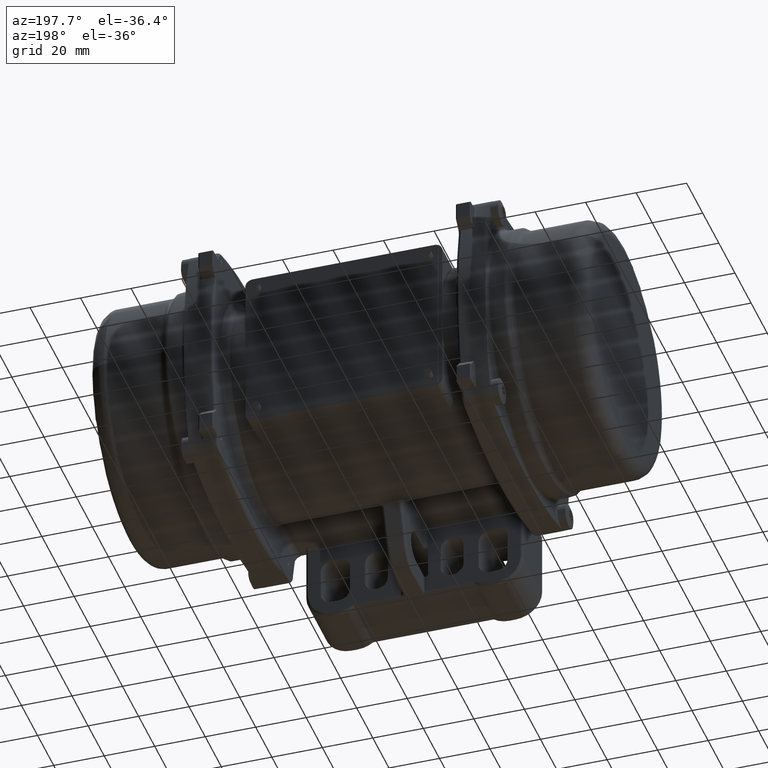
[diagram: clean part render]
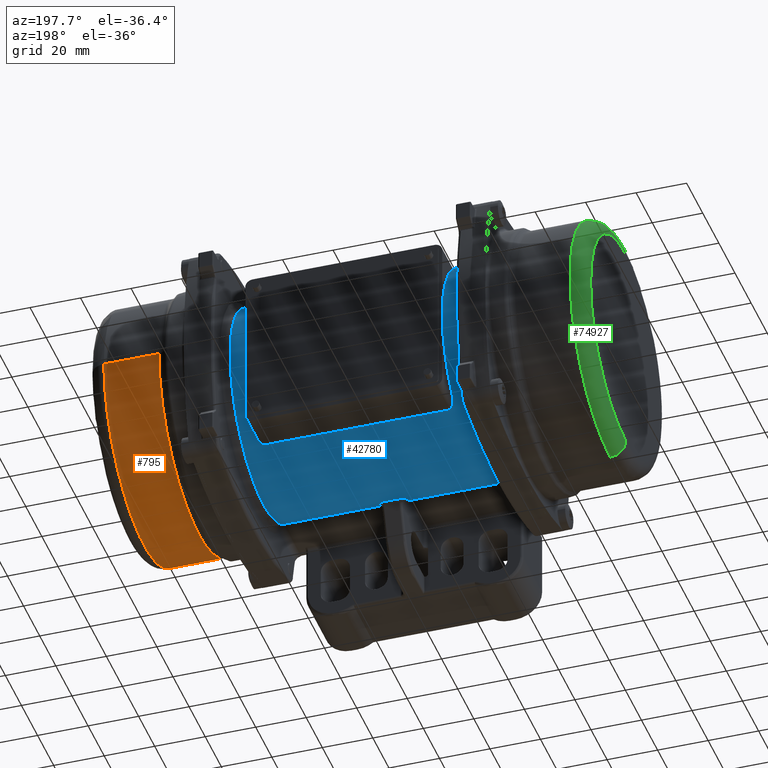
[diagram: same view with three faces highlighted in distinct colors, each labeled with its STEP entity id]
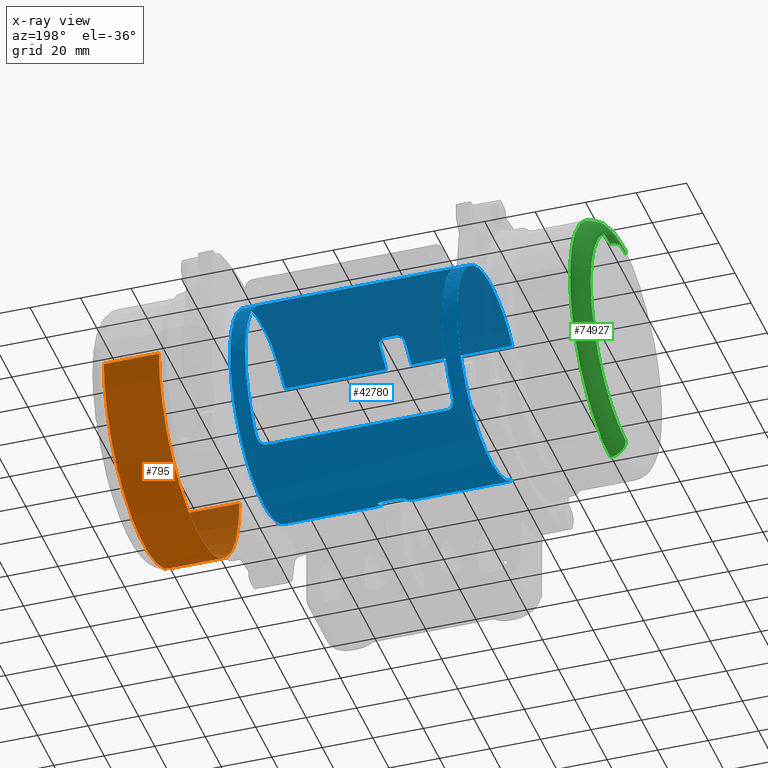
[diagram: x-ray of the same camera — body ghosted, the three highlighted faces saturated]
A machine part, auxiliary view with three faces highlighted in distinct colors.
The next image is the same camera in x-ray (body ghosted, the three faces saturated) — at least one of them is partly hidden behind the body in this view.
Their STEP definitions:

[orange] entity #795 — the highlighted cylindrical surface (partial cylindrical patch) has radius 49.95 mm, axis along (-1, -0, 0).
#795 = ADVANCED_FACE ( 'NONE', ( #101540 ), #73469, .T. ) ;
#12268 = EDGE_CURVE ( 'NONE', #35169, #54303, #68991, .T. ) ;
#13013 = ORIENTED_EDGE ( 'NONE', *, *, #21542, .F. ) ;
#16876 = AXIS2_PLACEMENT_3D ( 'NONE', #104878, #95794, #66921 ) ;
#19574 = AXIS2_PLACEMENT_3D ( 'NONE', #39358, #30323, #58751 ) ;
#20724 = CARTESIAN_POINT ( 'NONE',  ( 70.48969696196699900, -49.95000000000000300, 0.0000000000000000000 ) ) ;
#21542 = EDGE_CURVE ( 'NONE', #84191, #91439, #106180, .T. ) ;
#22369 = EDGE_LOOP ( 'NONE', ( #80527, #50413, #97755, #13013 ) ) ;
#23762 = VECTOR ( 'NONE', #95420, 1000.000000000000000 ) ;
#25560 = CARTESIAN_POINT ( 'NONE',  ( 92.29999999999999700, 1.600247234968320000E-015, 0.0000000000000000000 ) ) ;
#29938 = CARTESIAN_POINT ( 'NONE',  ( 58.50000000000000000, 49.95000000000000300, 6.117110761741029000E-015 ) ) ;
#30323 = DIRECTION ( 'NONE',  ( -1.000000000000000000, -4.734459275054199100E-017, 0.0000000000000000000 ) ) ;
#35030 = DIRECTION ( 'NONE',  ( 0.0000000000000000000, -1.000000000000000000, 0.0000000000000000000 ) ) ;
#35169 = VERTEX_POINT ( 'NONE', #97448 ) ;
#39358 = CARTESIAN_POINT ( 'NONE',  ( 58.50000000000000000, 0.0000000000000000000, 0.0000000000000000000 ) ) ;
#39909 = LINE ( 'NONE', #29938, #23762 ) ;
#40985 = CARTESIAN_POINT ( 'NONE',  ( 58.50000000000000000, -49.95000000000000300, 0.0000000000000000000 ) ) ;
#50413 = ORIENTED_EDGE ( 'NONE', *, *, #12268, .T. ) ;
#52105 = CARTESIAN_POINT ( 'NONE',  ( 92.29999999999999700, -49.94999999999999600, 0.0000000000000000000 ) ) ;
#54303 = VERTEX_POINT ( 'NONE', #52105 ) ;
#58751 = DIRECTION ( 'NONE',  ( 0.0000000000000000000, -1.000000000000000000, 0.0000000000000000000 ) ) ;
#60353 = DIRECTION ( 'NONE',  ( -1.000000000000000000, -4.734459275054199100E-017, 0.0000000000000000000 ) ) ;
#66921 = DIRECTION ( 'NONE',  ( 0.0000000000000000000, -1.000000000000000000, 0.0000000000000000000 ) ) ;
#68991 = CIRCLE ( 'NONE', #87204, 49.95000000000000300 ) ;
#73469 = CYLINDRICAL_SURFACE ( 'NONE', #19574, 49.95000000000000300 ) ;
#80527 = ORIENTED_EDGE ( 'NONE', *, *, #110340, .F. ) ;
#84191 = VERTEX_POINT ( 'NONE', #114572 ) ;
#87204 = AXIS2_PLACEMENT_3D ( 'NONE', #25560, #101772, #35030 ) ;
#91439 = VERTEX_POINT ( 'NONE', #20724 ) ;
#95420 = DIRECTION ( 'NONE',  ( -1.000000000000000000, -4.734459275054199100E-017, 0.0000000000000000000 ) ) ;
#95794 = DIRECTION ( 'NONE',  ( -1.000000000000000000, -4.734459275054199100E-017, 0.0000000000000000000 ) ) ;
#97448 = CARTESIAN_POINT ( 'NONE',  ( 92.29999999999999700, 49.94999999999999600, 6.117110761741028200E-015 ) ) ;
#97755 = ORIENTED_EDGE ( 'NONE', *, *, #113675, .T. ) ;
#98602 = LINE ( 'NONE', #40985, #107359 ) ;
#101540 = FACE_OUTER_BOUND ( 'NONE', #22369, .T. ) ;
#101772 = DIRECTION ( 'NONE',  ( -1.000000000000000000, -4.734459275054199100E-017, 0.0000000000000000000 ) ) ;
#104878 = CARTESIAN_POINT ( 'NONE',  ( 70.48969696196699900, 5.676473198667389600E-016, 0.0000000000000000000 ) ) ;
#106180 = CIRCLE ( 'NONE', #16876, 49.95000000000000300 ) ;
#107359 = VECTOR ( 'NONE', #60353, 1000.000000000000000 ) ;
#110340 = EDGE_CURVE ( 'NONE', #35169, #84191, #39909, .T. ) ;
#113675 = EDGE_CURVE ( 'NONE', #54303, #91439, #98602, .T. ) ;
#114572 = CARTESIAN_POINT ( 'NONE',  ( 70.48969696196699900, 49.95000000000000300, 6.117110761741029000E-015 ) ) ;

[blue] entity #42780 — the highlighted cylindrical surface (partial cylindrical patch) has radius 41.5 mm, axis along (-1, -0, 0).
#667 = CARTESIAN_POINT ( 'NONE',  ( 45.00000000000000000, -9.436648512232183700, 40.60353742847329500 ) ) ;
#774 = CARTESIAN_POINT ( 'NONE',  ( -45.00000000000000700, 37.09332074127581800, 19.02059786740895900 ) ) ;
#824 = CARTESIAN_POINT ( 'NONE',  ( 5.500000000000000000, -18.26934866613990100, -37.26232546842739900 ) ) ;
#941 = AXIS2_PLACEMENT_3D ( 'NONE', #57707, #30925, #4118 ) ;
#1161 = VECTOR ( 'NONE', #14007, 1000.000000000000000 ) ;
#1355 = EDGE_CURVE ( 'NONE', #122212, #76712, #26231, .T. ) ;
#1522 = CARTESIAN_POINT ( 'NONE',  ( -39.00000000000000000, 41.50000000000000000, 2.541142108230759800E-015 ) ) ;
#1674 = VERTEX_POINT ( 'NONE', #42942 ) ;
#1795 = CARTESIAN_POINT ( 'NONE',  ( 5.000000000000000000, -26.80392614338795100, 31.68279569892475000 ) ) ;
#1824 = CARTESIAN_POINT ( 'NONE',  ( -5.000000000000000000, -6.804890679999999100E-015, 0.0000000000000000000 ) ) ;
#1972 = DIRECTION ( 'NONE',  ( 1.672022627447525000E-016, -1.000000000000000000, 0.0000000000000000000 ) ) ;
#2007 = CARTESIAN_POINT ( 'NONE',  ( -45.00000000000000700, 24.35663043462383100, 33.82975230060072400 ) ) ;
#2133 = CARTESIAN_POINT ( 'NONE',  ( -45.00000000000000000, -26.80392614338795100, -31.68279569892475000 ) ) ;
#2202 = ORIENTED_EDGE ( 'NONE', *, *, #71965, .T. ) ;
#2526 = DIRECTION ( 'NONE',  ( 1.000000000000000000, 8.560756000000000800E-017, -0.0000000000000000000 ) ) ;
#2964 = CARTESIAN_POINT ( 'NONE',  ( 36.97080852912091600, 25.36180655224695000, 32.84871640095702400 ) ) ;
#3043 = AXIS2_PLACEMENT_3D ( 'NONE', #90653, #72492, #24762 ) ;
#3360 = CARTESIAN_POINT ( 'NONE',  ( 5.000000000000000000, -5.948815079999999600E-015, 0.0000000000000000000 ) ) ;
#4118 = DIRECTION ( 'NONE',  ( 1.672022627447525000E-016, -1.000000000000000000, 0.0000000000000000000 ) ) ;
#7039 = CARTESIAN_POINT ( 'NONE',  ( 36.00000000000000000, 25.16445906432325300, 33.00000000000000000 ) ) ;
#7253 = VERTEX_POINT ( 'NONE', #32297 ) ;
#7379 = B_SPLINE_CURVE_WITH_KNOTS ( 'NONE', 3,
 ( #20252, #37966, #103098, #46630, #103914, #47429, #59003, #12808, #2964, #106819, #96061, #39995, #105982, #77493 ),
 .UNSPECIFIED., .F., .F.,
 ( 4, 2, 2, 2, 2, 2, 4 ),
 ( 0.0000000000000000000, 0.001493043773895242900, 0.002986087547790479300, 0.004479131321685715300, 0.005225653208633340000, 0.005598914152107155000, 0.005972175095580969100 ),
 .UNSPECIFIED. ) ;
#7770 = EDGE_CURVE ( 'NONE', #20370, #17936, #102039, .T. ) ;
#8490 = CARTESIAN_POINT ( 'NONE',  ( 45.00000000000000000, -26.80392614338795100, 31.68279569892475000 ) ) ;
#8886 = B_SPLINE_CURVE_WITH_KNOTS ( 'NONE', 3,
 ( #51866, #108315, #23839, #109135, #41535, #70339, #117779, #107494, #23012, #107903 ),
 .UNSPECIFIED., .F., .F.,
 ( 4, 2, 2, 2, 4 ),
 ( 0.0000000000000000000, 0.2500000000000000000, 0.5000000000000000000, 0.7500000000000000000, 1.000000000000000000 ),
 .UNSPECIFIED. ) ;
#8896 = CARTESIAN_POINT ( 'NONE',  ( 45.00000000000000700, -13.25631805677156200, -39.52173602495920300 ) ) ;
#9696 = CARTESIAN_POINT ( 'NONE',  ( 45.00000000000000000, 24.35663043462384900, 33.82975230060073800 ) ) ;
#9964 = EDGE_LOOP ( 'NONE', ( #73390, #60228, #40134, #107787, #75637, #82828, #46423, #24103, #99812, #37234, #26137, #100438, #103154, #12003, #57610, #2202 ) ) ;
#10099 = CARTESIAN_POINT ( 'NONE',  ( 45.00000000000000000, -20.44005371033398100, 36.33045266945497100 ) ) ;
#10151 = AXIS2_PLACEMENT_3D ( 'NONE', #1824, #10857, #40526 ) ;
#10205 = CARTESIAN_POINT ( 'NONE',  ( -44.99999999999998600, 30.27445206728186400, 28.65580462794051500 ) ) ;
#10620 = CARTESIAN_POINT ( 'NONE',  ( -45.00000000000000000, 13.89718443282241000, 39.30096502236252600 ) ) ;
#10857 = DIRECTION ( 'NONE',  ( -1.000000000000000000, -8.560756000000000800E-017, 0.0000000000000000000 ) ) ;
#11332 = VECTOR ( 'NONE', #40556, 1000.000000000000000 ) ;
#11447 = DIRECTION ( 'NONE',  ( 1.672022627447525000E-016, -1.000000000000000000, 0.0000000000000000000 ) ) ;
#11732 = CARTESIAN_POINT ( 'NONE',  ( -4.405737000142092800, -16.99334913965218500, 37.86223667024636100 ) ) ;
#12003 = ORIENTED_EDGE ( 'NONE', *, *, #1355, .T. ) ;
#12162 = VERTEX_POINT ( 'NONE', #117894 ) ;
#12802 = CARTESIAN_POINT ( 'NONE',  ( -38.06703265897230200, 26.17784486581383500, -32.20504604893609000 ) ) ;
#12808 = CARTESIAN_POINT ( 'NONE',  ( 37.18541944342040800, 25.47093289277618300, 32.76442921106637800 ) ) ;
#13208 = CARTESIAN_POINT ( 'NONE',  ( -39.00000000000000700, 28.30991299814394000, -30.34886738248420100 ) ) ;
#13871 = DIRECTION ( 'NONE',  ( -1.000000000000000000, -8.560756000000000800E-017, 0.0000000000000000000 ) ) ;
#14007 = DIRECTION ( 'NONE',  ( 1.000000000000000000, 8.560756000000000800E-017, -0.0000000000000000000 ) ) ;
#14037 = VERTEX_POINT ( 'NONE', #60176 ) ;
#14116 = ORIENTED_EDGE ( 'NONE', *, *, #49940, .T. ) ;
#14440 = CARTESIAN_POINT ( 'NONE',  ( -37.18541944342045700, 25.47093289277619700, -32.76442921106635700 ) ) ;
#15518 = EDGE_CURVE ( 'NONE', #93365, #22175, #45065, .T. ) ;
#15939 = VECTOR ( 'NONE', #27093, 1000.000000000000000 ) ;
#16189 = EDGE_CURVE ( 'NONE', #76518, #7253, #34656, .T. ) ;
#17451 = B_SPLINE_CURVE_WITH_KNOTS ( 'NONE', 3,
 ( #95948, #95116, #86007, #19318, #66654, #28790, #47727, #39469, #114481, #114904, #58463, #113652, #49406, #57638, #38666, #30440, #105450, #57231, #115319, #30041, #774, #58879, #10205, #2007, #58058, #10620, #76121, #95525, #85601, #39082, #67069, #29195, #104598, #48147 ),
 .UNSPECIFIED., .F., .F.,
 ( 4, 2, 2, 2, 2, 2, 2, 2, 2, 2, 2, 2, 2, 2, 2, 2, 4 ),
 ( 0.0000000000000000000, 0.06250000000000005600, 0.1250000000000001100, 0.1875000000000001700, 0.2500000000000002200, 0.3125000000000002200, 0.3750000000000002200, 0.4375000000000002200, 0.5000000000000002200, 0.5625000000000002200, 0.6250000000000003300, 0.6875000000000002200, 0.7500000000000002200, 0.8125000000000001100, 0.8750000000000001100, 0.9375000000000000000, 1.000000000000000000 ),
 .UNSPECIFIED. ) ;
#17786 = DIRECTION ( 'NONE',  ( -1.000000000000000000, -8.560756000000000800E-017, 0.0000000000000000000 ) ) ;
#17936 = VERTEX_POINT ( 'NONE', #121078 ) ;
#18002 = CARTESIAN_POINT ( 'NONE',  ( 45.00000000000001400, 13.89718443282242800, -39.30096502236253300 ) ) ;
#19216 = CARTESIAN_POINT ( 'NONE',  ( 45.00000000000000000, 32.86308350020744500, 25.64596127477459900 ) ) ;
#19318 = CARTESIAN_POINT ( 'NONE',  ( -45.00000000000000700, -13.25631805677157300, -39.52173602495921000 ) ) ;
#20252 = CARTESIAN_POINT ( 'NONE',  ( 39.00000000000000000, 28.67490191787935300, 30.00000000000000000 ) ) ;
#20370 = VERTEX_POINT ( 'NONE', #7039 ) ;
#21219 = CARTESIAN_POINT ( 'NONE',  ( -3.331799564934461600, -16.06638084906878900, -38.26383941049779500 ) ) ;
#21326 = CARTESIAN_POINT ( 'NONE',  ( -39.00000000000000000, -9.715547720000000300E-015, 0.0000000000000000000 ) ) ;
#21386 = VERTEX_POINT ( 'NONE', #32406 ) ;
#21633 = CARTESIAN_POINT ( 'NONE',  ( -5.499986974609465000, -17.98114148010345300, -37.40363059374085700 ) ) ;
#22165 = CARTESIAN_POINT ( 'NONE',  ( -5.000000000000000000, -26.80392614338795100, 31.68279569892475000 ) ) ;
#22175 = VERTEX_POINT ( 'NONE', #2133 ) ;
#22740 = EDGE_CURVE ( 'NONE', #66871, #63677, #30495, .T. ) ;
#22825 = AXIS2_PLACEMENT_3D ( 'NONE', #44236, #100695, #90790 ) ;
#23012 = CARTESIAN_POINT ( 'NONE',  ( 3.331867981646504900, -16.06638087574636800, -38.26383939929642300 ) ) ;
#23102 = CARTESIAN_POINT ( 'NONE',  ( -36.00000000000000000, 25.16445906432325300, -33.00000000000000000 ) ) ;
#23375 = CARTESIAN_POINT ( 'NONE',  ( 38.04668703145266300, 26.17830464854081300, -32.20226353775233000 ) ) ;
#23839 = CARTESIAN_POINT ( 'NONE',  ( 5.437261034816005500, -17.70341183188086000, -37.53568015288149000 ) ) ;
#24051 = CARTESIAN_POINT ( 'NONE',  ( -37.74077835069474000, 25.86902314261497400, 32.45124116075557900 ) ) ;
#24103 = ORIENTED_EDGE ( 'NONE', *, *, #73441, .T. ) ;
#24202 = CARTESIAN_POINT ( 'NONE',  ( 38.53697707280093700, 26.85463837310741700, -31.64290590803623700 ) ) ;
#24312 = CARTESIAN_POINT ( 'NONE',  ( 48.00000000000000000, -26.80392614338795100, 31.68279569892475000 ) ) ;
#24459 = CARTESIAN_POINT ( 'NONE',  ( -39.00000000000000000, 28.67490191787935300, 30.00000000000000000 ) ) ;
#24762 = DIRECTION ( 'NONE',  ( 1.672022627447525000E-016, -1.000000000000000000, 0.0000000000000000000 ) ) ;
#25237 = VERTEX_POINT ( 'NONE', #78346 ) ;
#26124 = CARTESIAN_POINT ( 'NONE',  ( 4.924327064895720700, -17.91266762859300200, 37.43674085501444200 ) ) ;
#26137 = ORIENTED_EDGE ( 'NONE', *, *, #66537, .T. ) ;
#26231 = LINE ( 'NONE', #63772, #15939 ) ;
#27086 = CARTESIAN_POINT ( 'NONE',  ( 45.00000000000002100, -1.646359311140531200, 41.65317620383189700 ) ) ;
#27093 = DIRECTION ( 'NONE',  ( -1.000000000000000000, -8.560756000000000800E-017, 0.0000000000000000000 ) ) ;
#27157 = CARTESIAN_POINT ( 'NONE',  ( 48.00000000000000000, -26.80392614338795100, -31.68279569892475000 ) ) ;
#27480 = CARTESIAN_POINT ( 'NONE',  ( 45.00000000000000000, -26.80392614338795100, -31.68279569892475000 ) ) ;
#28681 = CARTESIAN_POINT ( 'NONE',  ( 45.00000000000000000, -13.25631805677161000, 39.52173602495918900 ) ) ;
#28790 = CARTESIAN_POINT ( 'NONE',  ( -45.00000000000000000, -1.646359311140513900, -41.65317620383187600 ) ) ;
#29195 = CARTESIAN_POINT ( 'NONE',  ( -45.00000000000000700, -20.44005371033399100, 36.33045266945497800 ) ) ;
#29223 = VERTEX_POINT ( 'NONE', #29253 ) ;
#29253 = CARTESIAN_POINT ( 'NONE',  ( 5.000000000000000000, -18.58273412551150000, 37.10703427142284700 ) ) ;
#30041 = CARTESIAN_POINT ( 'NONE',  ( -45.00000000000000700, 38.73446887403809300, 15.40579462069445400 ) ) ;
#30440 = CARTESIAN_POINT ( 'NONE',  ( -45.00000000000000000, 40.93792770107159400, -7.860258417550873800 ) ) ;
#30444 = VERTEX_POINT ( 'NONE', #82352 ) ;
#30495 = CIRCLE ( 'NONE', #79292, 41.50000000000000000 ) ;
#30716 = CARTESIAN_POINT ( 'NONE',  ( -4.535742395731329400, -16.51076376987780100, -38.07487488722641400 ) ) ;
#30925 = DIRECTION ( 'NONE',  ( -1.000000000000000000, -8.560756000000000800E-017, 0.0000000000000000000 ) ) ;
#31269 = DIRECTION ( 'NONE',  ( 1.000000000000000000, 8.560756000000000800E-017, -0.0000000000000000000 ) ) ;
#31394 = DIRECTION ( 'NONE',  ( 1.672022627447525000E-016, -1.000000000000000000, 1.776356839400250500E-015 ) ) ;
#32297 = CARTESIAN_POINT ( 'NONE',  ( -5.000000000000000000, -18.58273412551150000, 37.10703427142284700 ) ) ;
#32334 = CARTESIAN_POINT ( 'NONE',  ( -3.842315135766096700, -16.49933194678997900, 38.08011194791188100 ) ) ;
#32406 = CARTESIAN_POINT ( 'NONE',  ( 5.500000000000000000, -26.80392614338795100, -31.68279569892475000 ) ) ;
#33100 = CARTESIAN_POINT ( 'NONE',  ( -38.53697707280092300, 26.85463837310741300, 31.64290590803622300 ) ) ;
#33389 = CARTESIAN_POINT ( 'NONE',  ( 39.00000000000000000, 41.50000000000000000, 2.541142108230759800E-015 ) ) ;
#33501 = CARTESIAN_POINT ( 'NONE',  ( -36.96966368561911800, 25.36105556163562400, 32.84929758777426700 ) ) ;
#33971 = CARTESIAN_POINT ( 'NONE',  ( 2.000000000000000000, -15.97234780179230100, 38.30318662590074300 ) ) ;
#34377 = CIRCLE ( 'NONE', #74802, 41.50000000000000000 ) ;
#34656 = CIRCLE ( 'NONE', #10151, 41.50000000000000000 ) ;
#35347 = EDGE_CURVE ( 'NONE', #21386, #99794, #41857, .T. ) ;
#37234 = ORIENTED_EDGE ( 'NONE', *, *, #69098, .T. ) ;
#37358 = CARTESIAN_POINT ( 'NONE',  ( 44.99999999999999300, 2.323417502948888400, -41.62090001376515900 ) ) ;
#37458 = CARTESIAN_POINT ( 'NONE',  ( 48.00000000000000000, -15.97234780179230100, 38.30318662590074300 ) ) ;
#37966 = CARTESIAN_POINT ( 'NONE',  ( 39.00000000000000700, 28.30991299814393600, 30.34886738248420100 ) ) ;
#38150 = CARTESIAN_POINT ( 'NONE',  ( 45.00000000000002100, -23.80334260078467100, 34.22131598694760900 ) ) ;
#38215 = EDGE_LOOP ( 'NONE', ( #14116, #113294, #42815, #89242, #96147, #53504, #93046, #47708, #51510, #71210 ) ) ;
#38433 = CARTESIAN_POINT ( 'NONE',  ( 39.00000000000000000, 28.67490191787935300, -30.00000000000000000 ) ) ;
#38452 = CARTESIAN_POINT ( 'NONE',  ( 48.00000000000000000, -26.80392614338795100, -31.68279569892475000 ) ) ;
#38466 = CARTESIAN_POINT ( 'NONE',  ( 3.000000000000000000, -16.06625147205385000, -38.26389373334515700 ) ) ;
#38666 = CARTESIAN_POINT ( 'NONE',  ( -45.00000000000000000, 38.73446887403812200, -15.40579462069440800 ) ) ;
#38931 = CARTESIAN_POINT ( 'NONE',  ( -3.652122148808499600, -16.12349371370027700, -38.24000479331687800 ) ) ;
#39082 = CARTESIAN_POINT ( 'NONE',  ( -45.00000000000000000, -9.436648512232181900, 40.60353742847329500 ) ) ;
#39211 = LINE ( 'NONE', #102733, #43727 ) ;
#39446 = CIRCLE ( 'NONE', #70481, 41.50000000000000000 ) ;
#39469 = CARTESIAN_POINT ( 'NONE',  ( -45.00000000000000000, 10.09560981719779900, -40.44473079732073000 ) ) ;
#39700 = LINE ( 'NONE', #119358, #104627 ) ;
#39995 = CARTESIAN_POINT ( 'NONE',  ( 36.25276983336797800, 25.17507148804485300, 32.99191467751268200 ) ) ;
#40134 = ORIENTED_EDGE ( 'NONE', *, *, #114783, .T. ) ;
#40169 = CARTESIAN_POINT ( 'NONE',  ( -2.398336183495797200, -15.97247593339253400, 38.30313319529447800 ) ) ;
#40526 = DIRECTION ( 'NONE',  ( 8.360113137237625000E-017, -1.000000000000000000, 0.0000000000000000000 ) ) ;
#40556 = DIRECTION ( 'NONE',  ( -1.000000000000000000, -8.560756000000000800E-017, 0.0000000000000000000 ) ) ;
#40813 = DIRECTION ( 'NONE',  ( 8.360113137237625000E-017, -1.000000000000000000, 1.509903313490212900E-014 ) ) ;
#41391 = CARTESIAN_POINT ( 'NONE',  ( -2.781701497614261300, -16.03992128216436400, 38.27521648377432200 ) ) ;
#41535 = CARTESIAN_POINT ( 'NONE',  ( 5.004571130280928600, -16.92656908257234200, -37.89185975589194300 ) ) ;
#41752 = CARTESIAN_POINT ( 'NONE',  ( -38.04668703145265600, 26.17830464854079900, 32.20226353775230900 ) ) ;
#41857 = CIRCLE ( 'NONE', #22825, 41.50000000000000000 ) ;
#42454 = CARTESIAN_POINT ( 'NONE',  ( -36.49937316543528700, 25.21585340150327800, -32.96075538804204500 ) ) ;
#42780 = ADVANCED_FACE ( 'NONE', ( #58360, #48039 ), #120306, .T. ) ;
#42815 = ORIENTED_EDGE ( 'NONE', *, *, #7770, .T. ) ;
#42942 = CARTESIAN_POINT ( 'NONE',  ( -36.00000000000000000, 25.16445906432325300, -33.00000000000000000 ) ) ;
#42988 = CARTESIAN_POINT ( 'NONE',  ( -38.18279775045818500, 26.34495522369890700, 32.06621443786436000 ) ) ;
#43151 = CARTESIAN_POINT ( 'NONE',  ( 38.99999999999998600, 28.31019557621171100, -30.34859728587158800 ) ) ;
#43233 = VECTOR ( 'NONE', #31269, 1000.000000000000000 ) ;
#43608 = CIRCLE ( 'NONE', #69294, 41.50000000000000000 ) ;
#43727 = VECTOR ( 'NONE', #112580, 1000.000000000000000 ) ;
#43854 = CARTESIAN_POINT ( 'NONE',  ( 2.782599804904236000, -16.04027369573460900, 38.27506734031795300 ) ) ;
#44236 = CARTESIAN_POINT ( 'NONE',  ( 5.500000000000000000, -5.906011299999999700E-015, 0.0000000000000000000 ) ) ;
#45065 = LINE ( 'NONE', #27157, #102521 ) ;
#45449 = EDGE_CURVE ( 'NONE', #54363, #98315, #108463, .T. ) ;
#46008 = CARTESIAN_POINT ( 'NONE',  ( 45.00000000000000000, 38.73446887403811400, 15.40579462069444700 ) ) ;
#46423 = ORIENTED_EDGE ( 'NONE', *, *, #70267, .T. ) ;
#46600 = CARTESIAN_POINT ( 'NONE',  ( -5.500000000000000000, -6.847694459999999800E-015, 0.0000000000000000000 ) ) ;
#46630 = CARTESIAN_POINT ( 'NONE',  ( 38.71117637958996500, 27.22069802426599200, 31.32920617801863400 ) ) ;
#46812 = CARTESIAN_POINT ( 'NONE',  ( 45.00000000000000000, -1.646359311140505000, -41.65317620383189000 ) ) ;
#47077 = B_SPLINE_CURVE_WITH_KNOTS ( 'NONE', 3,
 ( #78715, #13208, #116252, #79112, #88585, #12802, #70849, #14440, #79513, #108002, #42454, #61005, #116670, #23102 ),
 .UNSPECIFIED., .F., .F.,
 ( 4, 2, 2, 2, 2, 2, 4 ),
 ( 0.0000000000000000000, 0.001493043773895204800, 0.002986087547790409500, 0.004479131321685614700, 0.005225653208633215100, 0.005598914152107014500, 0.005972175095580813800 ),
 .UNSPECIFIED. ) ;
#47209 = CARTESIAN_POINT ( 'NONE',  ( 44.99999999999999300, 40.93792770107160100, 7.860258417550913800 ) ) ;
#47429 = CARTESIAN_POINT ( 'NONE',  ( 38.06703265897225900, 26.17784486581380700, 32.20504604893611900 ) ) ;
#47621 = CARTESIAN_POINT ( 'NONE',  ( 45.00000000000000000, 13.89718443282241200, 39.30096502236253300 ) ) ;
#47708 = ORIENTED_EDGE ( 'NONE', *, *, #116984, .T. ) ;
#47727 = CARTESIAN_POINT ( 'NONE',  ( -44.99999999999998600, 2.323417502948882200, -41.62090001376515900 ) ) ;
#48039 = FACE_OUTER_BOUND ( 'NONE', #9964, .T. ) ;
#48147 = CARTESIAN_POINT ( 'NONE',  ( -45.00000000000000000, -26.80392614338795100, 31.68279569892475000 ) ) ;
#49394 = VERTEX_POINT ( 'NONE', #1795 ) ;
#49406 = CARTESIAN_POINT ( 'NONE',  ( -45.00000000000000000, 32.86308350020744500, -25.64596127477459900 ) ) ;
#49672 = CARTESIAN_POINT ( 'NONE',  ( -5.500000000000000000, -18.26934866613984800, -37.26232546842739900 ) ) ;
#49940 = EDGE_CURVE ( 'NONE', #87377, #14037, #43608, .T. ) ;
#50089 = CARTESIAN_POINT ( 'NONE',  ( -4.999986977248799000, -18.24223822142476700, 37.27755031994853100 ) ) ;
#50501 = CARTESIAN_POINT ( 'NONE',  ( -4.924766335671957800, -17.91362045608679300, 37.43629481274271600 ) ) ;
#51293 = CARTESIAN_POINT ( 'NONE',  ( -3.518490387096523200, -16.30855118900024100, 38.16153075721120300 ) ) ;
#51510 = ORIENTED_EDGE ( 'NONE', *, *, #45449, .T. ) ;
#51663 = CARTESIAN_POINT ( 'NONE',  ( -39.00000000000000000, 28.31019557621171500, 30.34859728587159800 ) ) ;
#51774 = VERTEX_POINT ( 'NONE', #95938 ) ;
#51866 = CARTESIAN_POINT ( 'NONE',  ( 5.500000000000000000, -18.26934866613990100, -37.26232546842739900 ) ) ;
#52530 = CARTESIAN_POINT ( 'NONE',  ( 4.404905595596333400, -16.99260393536104600, 37.86256532599799100 ) ) ;
#52881 = CARTESIAN_POINT ( 'NONE',  ( -37.57066824347722900, 25.72501199590641400, 32.56532271691830300 ) ) ;
#53359 = CARTESIAN_POINT ( 'NONE',  ( 2.398267662984599800, -15.97247591135174400, 38.30313320448543400 ) ) ;
#53504 = ORIENTED_EDGE ( 'NONE', *, *, #72780, .T. ) ;
#54363 = VERTEX_POINT ( 'NONE', #63589 ) ;
#56328 = CARTESIAN_POINT ( 'NONE',  ( 44.99999999999998600, 37.09332074127583200, -19.02059786740895900 ) ) ;
#56727 = CARTESIAN_POINT ( 'NONE',  ( 44.99999999999998600, -20.44005371033394200, -36.33045266945499900 ) ) ;
#57231 = CARTESIAN_POINT ( 'NONE',  ( -45.00000000000001400, 41.49999999999999300, 3.930341823409942300 ) ) ;
#57610 = ORIENTED_EDGE ( 'NONE', *, *, #70842, .T. ) ;
#57638 = CARTESIAN_POINT ( 'NONE',  ( -45.00000000000000000, 37.09332074127581800, -19.02059786740895600 ) ) ;
#57707 = CARTESIAN_POINT ( 'NONE',  ( 48.00000000000000000, -2.267690000000000000E-015, 0.0000000000000000000 ) ) ;
#58058 = CARTESIAN_POINT ( 'NONE',  ( -45.00000000000000000, 21.02808049242617000, 35.99329684334141900 ) ) ;
#58360 = FACE_BOUND ( 'NONE', #38215, .T. ) ;
#58463 = CARTESIAN_POINT ( 'NONE',  ( -45.00000000000000700, 24.35663043462386700, -33.82975230060072400 ) ) ;
#58879 = CARTESIAN_POINT ( 'NONE',  ( -44.99999999999999300, 32.86308350020744500, 25.64596127477459200 ) ) ;
#59003 = CARTESIAN_POINT ( 'NONE',  ( 37.76483774926720800, 25.85346144361904300, 32.46465011677244000 ) ) ;
#59162 = CARTESIAN_POINT ( 'NONE',  ( -5.184499758316357900, -17.16561078442967800, -37.78464421327522200 ) ) ;
#60176 = CARTESIAN_POINT ( 'NONE',  ( 39.00000000000000000, 28.67490191787935300, 30.00000000000000000 ) ) ;
#60228 = ORIENTED_EDGE ( 'NONE', *, *, #112261, .T. ) ;
#60281 = B_SPLINE_CURVE_WITH_KNOTS ( 'NONE', 3,
 ( #116016, #50089, #50501, #117235, #11732, #32334, #51293, #41391, #40169, #88335 ),
 .UNSPECIFIED., .F., .F.,
 ( 4, 2, 2, 2, 4 ),
 ( 0.0000000000000000000, 0.2500000000000000000, 0.5000000000000000000, 0.7500000000000000000, 1.000000000000000000 ),
 .UNSPECIFIED. ) ;
#60875 = CARTESIAN_POINT ( 'NONE',  ( 37.18180700678653500, 25.46881098959096700, -32.76608235085566200 ) ) ;
#61005 = CARTESIAN_POINT ( 'NONE',  ( -36.25276983336799200, 25.17507148804485300, -32.99191467751269600 ) ) ;
#61661 = CARTESIAN_POINT ( 'NONE',  ( 48.00000000000000000, 25.16445906432325300, 33.00000000000000000 ) ) ;
#63589 = CARTESIAN_POINT ( 'NONE',  ( 36.00000000000000000, 25.16445906432325300, -33.00000000000000000 ) ) ;
#63677 = VERTEX_POINT ( 'NONE', #1522 ) ;
#63772 = CARTESIAN_POINT ( 'NONE',  ( 48.00000000000000000, -16.06625147205385000, -38.26389373334515700 ) ) ;
#64587 = EDGE_CURVE ( 'NONE', #49394, #82145, #39700, .T. ) ;
#64951 = CARTESIAN_POINT ( 'NONE',  ( 45.00000000000000700, 21.02808049242619900, -35.99329684334140500 ) ) ;
#65749 = CARTESIAN_POINT ( 'NONE',  ( 45.00000000000000000, 30.27445206728191000, -28.65580462794049800 ) ) ;
#66537 = EDGE_CURVE ( 'NONE', #12162, #21386, #76201, .T. ) ;
#66654 = CARTESIAN_POINT ( 'NONE',  ( -44.99999999999998600, -9.436648512232162400, -40.60353742847330200 ) ) ;
#66871 = VERTEX_POINT ( 'NONE', #86130 ) ;
#67069 = CARTESIAN_POINT ( 'NONE',  ( -44.99999999999998600, -13.25631805677162100, 39.52173602495916800 ) ) ;
#67370 = EDGE_CURVE ( 'NONE', #99794, #122212, #8886, .T. ) ;
#67670 = EDGE_CURVE ( 'NONE', #7253, #83569, #60281, .T. ) ;
#68191 = EDGE_CURVE ( 'NONE', #14037, #20370, #7379, .T. ) ;
#68272 = DIRECTION ( 'NONE',  ( -1.000000000000000000, -8.560756000000000800E-017, 0.0000000000000000000 ) ) ;
#68573 = CARTESIAN_POINT ( 'NONE',  ( -5.436884321194631800, -17.70258019718609800, -37.53606514125470300 ) ) ;
#69098 = EDGE_CURVE ( 'NONE', #82145, #12162, #93446, .T. ) ;
#69294 = AXIS2_PLACEMENT_3D ( 'NONE', #76960, #86003, #11447 ) ;
#69522 = CARTESIAN_POINT ( 'NONE',  ( -45.00000000000000000, -26.80392614338795100, 31.68279569892475000 ) ) ;
#70267 = EDGE_CURVE ( 'NONE', #51774, #29223, #110101, .T. ) ;
#70339 = CARTESIAN_POINT ( 'NONE',  ( 4.534946004099872100, -16.51004105744661000, -38.07519298636193400 ) ) ;
#70349 = CARTESIAN_POINT ( 'NONE',  ( 45.00000000000000000, -26.80392614338795100, 31.68279569892475000 ) ) ;
#70481 = AXIS2_PLACEMENT_3D ( 'NONE', #96892, #79119, #31394 ) ;
#70842 = EDGE_CURVE ( 'NONE', #76712, #25237, #97960, .T. ) ;
#70849 = CARTESIAN_POINT ( 'NONE',  ( -37.76483774926721500, 25.85346144361906800, -32.46465011677241800 ) ) ;
#71116 = CARTESIAN_POINT ( 'NONE',  ( 38.70788423421364400, 27.21204043317447600, -31.33680048928130200 ) ) ;
#71210 = ORIENTED_EDGE ( 'NONE', *, *, #95814, .T. ) ;
#71360 = CARTESIAN_POINT ( 'NONE',  ( -38.70788423421365800, 27.21204043317446900, 31.33680048928131600 ) ) ;
#71420 = CARTESIAN_POINT ( 'NONE',  ( 4.999986976125605900, -18.24220885428063700, 37.27756502664340800 ) ) ;
#71965 = EDGE_CURVE ( 'NONE', #25237, #93365, #118560, .T. ) ;
#72492 = DIRECTION ( 'NONE',  ( -1.000000000000000000, -8.560756000000000800E-017, 0.0000000000000000000 ) ) ;
#72780 = EDGE_CURVE ( 'NONE', #63677, #30444, #88946, .T. ) ;
#73390 = ORIENTED_EDGE ( 'NONE', *, *, #15518, .T. ) ;
#73441 = EDGE_CURVE ( 'NONE', #29223, #49394, #34377, .T. ) ;
#74412 = CARTESIAN_POINT ( 'NONE',  ( 45.00000000000000700, 41.50000000000001400, -3.930341823409936100 ) ) ;
#74802 = AXIS2_PLACEMENT_3D ( 'NONE', #3360, #2526, #40813 ) ;
#75138 = CARTESIAN_POINT ( 'NONE',  ( -36.00000000000000000, 25.16445906432325300, 33.00000000000000000 ) ) ;
#75613 = CARTESIAN_POINT ( 'NONE',  ( 45.00000000000000000, 10.09560981719782000, -40.44473079732074400 ) ) ;
#75637 = ORIENTED_EDGE ( 'NONE', *, *, #67670, .T. ) ;
#76024 = CARTESIAN_POINT ( 'NONE',  ( 45.00000000000000700, 21.02808049242617700, 35.99329684334141200 ) ) ;
#76121 = CARTESIAN_POINT ( 'NONE',  ( -44.99999999999998600, 10.09560981719778300, 40.44473079732073700 ) ) ;
#76201 = LINE ( 'NONE', #38452, #11332 ) ;
#76518 = VERTEX_POINT ( 'NONE', #22165 ) ;
#76712 = VERTEX_POINT ( 'NONE', #82231 ) ;
#76872 = CARTESIAN_POINT ( 'NONE',  ( -5.500000000000000000, -26.80392614338795100, -31.68279569892475000 ) ) ;
#76960 = CARTESIAN_POINT ( 'NONE',  ( 39.00000000000000000, -3.038158039999999600E-015, 0.0000000000000000000 ) ) ;
#77493 = CARTESIAN_POINT ( 'NONE',  ( 36.00000000000000000, 25.16445906432325300, 33.00000000000000000 ) ) ;
#77549 = VERTEX_POINT ( 'NONE', #69522 ) ;
#77637 = CARTESIAN_POINT ( 'NONE',  ( -3.000000000000000000, -16.06625147205385000, -38.26389373334515700 ) ) ;
#78346 = CARTESIAN_POINT ( 'NONE',  ( -5.500000000000000000, -18.26934866613984800, -37.26232546842739900 ) ) ;
#78715 = CARTESIAN_POINT ( 'NONE',  ( -39.00000000000000000, 28.67490191787935300, -30.00000000000000000 ) ) ;
#79112 = CARTESIAN_POINT ( 'NONE',  ( -38.71117637958997200, 27.22069802426601000, -31.32920617801859100 ) ) ;
#79119 = DIRECTION ( 'NONE',  ( 1.000000000000000000, 8.560756000000000800E-017, -0.0000000000000000000 ) ) ;
#79292 = AXIS2_PLACEMENT_3D ( 'NONE', #21326, #68272, #1972 ) ;
#79513 = CARTESIAN_POINT ( 'NONE',  ( -36.97080852912093700, 25.36180655224694600, -32.84871640095701700 ) ) ;
#80478 = EDGE_CURVE ( 'NONE', #30444, #1674, #47077, .T. ) ;
#80848 = CARTESIAN_POINT ( 'NONE',  ( -36.49967888950572400, 25.20654691124319400, 32.96800697679216800 ) ) ;
#82145 = VERTEX_POINT ( 'NONE', #70349 ) ;
#82231 = CARTESIAN_POINT ( 'NONE',  ( -3.000000000000000000, -16.06625147205385000, -38.26389373334515700 ) ) ;
#82352 = CARTESIAN_POINT ( 'NONE',  ( -39.00000000000000000, 28.67490191787935300, -30.00000000000000000 ) ) ;
#82828 = ORIENTED_EDGE ( 'NONE', *, *, #97197, .T. ) ;
#83569 = VERTEX_POINT ( 'NONE', #98950 ) ;
#85094 = CARTESIAN_POINT ( 'NONE',  ( 45.00000000000000700, 37.09332074127581800, 19.02059786740896600 ) ) ;
#85601 = CARTESIAN_POINT ( 'NONE',  ( -45.00000000000000000, -1.646359311140540800, 41.65317620383189700 ) ) ;
#86003 = DIRECTION ( 'NONE',  ( 1.000000000000000000, 8.560756000000000800E-017, -0.0000000000000000000 ) ) ;
#86007 = CARTESIAN_POINT ( 'NONE',  ( -45.00000000000000000, -20.44005371033394900, -36.33045266945499200 ) ) ;
#86130 = CARTESIAN_POINT ( 'NONE',  ( -39.00000000000000000, 28.67490191787935300, 30.00000000000000000 ) ) ;
#86279 = CARTESIAN_POINT ( 'NONE',  ( -4.264360765410893700, -16.34903912894261800, -38.14412059136943600 ) ) ;
#86548 = AXIS2_PLACEMENT_3D ( 'NONE', #46600, #17786, #112528 ) ;
#86612 = LINE ( 'NONE', #24312, #1161 ) ;
#87377 = VERTEX_POINT ( 'NONE', #33389 ) ;
#87406 = LINE ( 'NONE', #37458, #43233 ) ;
#88335 = CARTESIAN_POINT ( 'NONE',  ( -2.000000000000000000, -15.97234780179230100, 38.30318662590074300 ) ) ;
#88585 = CARTESIAN_POINT ( 'NONE',  ( -38.53786270816175400, 26.85643450713931900, -31.64137289051228300 ) ) ;
#88946 = CIRCLE ( 'NONE', #3043, 41.50000000000000000 ) ;
#89242 = ORIENTED_EDGE ( 'NONE', *, *, #116046, .T. ) ;
#89263 = CARTESIAN_POINT ( 'NONE',  ( 37.74077835069473300, 25.86902314261497400, -32.45124116075557900 ) ) ;
#90085 = CARTESIAN_POINT ( 'NONE',  ( 38.94106974171390300, 27.94451770360717200, -30.68540597343513100 ) ) ;
#90492 = CARTESIAN_POINT ( 'NONE',  ( 37.57066824347723600, 25.72501199590641700, -32.56532271691831000 ) ) ;
#90653 = CARTESIAN_POINT ( 'NONE',  ( -39.00000000000000000, -9.715547720000000300E-015, 0.0000000000000000000 ) ) ;
#90790 = DIRECTION ( 'NONE',  ( 8.360113137237625000E-017, -1.000000000000000000, 0.0000000000000000000 ) ) ;
#92503 = DIRECTION ( 'NONE',  ( 1.000000000000000000, 8.560756000000000800E-017, -0.0000000000000000000 ) ) ;
#92968 = CARTESIAN_POINT ( 'NONE',  ( 44.99999999999999300, 41.49999999999998600, 3.930341823409949000 ) ) ;
#93046 = ORIENTED_EDGE ( 'NONE', *, *, #80478, .T. ) ;
#93365 = VERTEX_POINT ( 'NONE', #76872 ) ;
#93446 = B_SPLINE_CURVE_WITH_KNOTS ( 'NONE', 3,
 ( #8490, #38150, #10099, #28681, #667, #27086, #93771, #94591, #47621, #76024, #9696, #104102, #19216, #85094, #46008, #47209, #92968, #74412, #103696, #122183, #56328, #121788, #65749, #103294, #64951, #18002, #75613, #37358, #46812, #113546, #8896, #56727, #112732, #27480 ),
 .UNSPECIFIED., .F., .F.,
 ( 4, 2, 2, 2, 2, 2, 2, 2, 2, 2, 2, 2, 2, 2, 2, 2, 4 ),
 ( 0.0000000000000000000, 0.06249999999999997200, 0.1249999999999999200, 0.1874999999999998600, 0.2499999999999998300, 0.3124999999999998300, 0.3749999999999998300, 0.4374999999999998300, 0.4999999999999998900, 0.5624999999999998900, 0.6249999999999997800, 0.6874999999999997800, 0.7499999999999997800, 0.8124999999999998900, 0.8749999999999998900, 0.9375000000000000000, 1.000000000000000000 ),
 .UNSPECIFIED. ) ;
#93771 = CARTESIAN_POINT ( 'NONE',  ( 45.00000000000000000, 2.323417502948877300, 41.62090001376515100 ) ) ;
#93843 = DIRECTION ( 'NONE',  ( -1.000000000000000000, -8.560756000000000800E-017, 0.0000000000000000000 ) ) ;
#94591 = CARTESIAN_POINT ( 'NONE',  ( 45.00000000000000000, 10.09560981719779500, 40.44473079732074400 ) ) ;
#95116 = CARTESIAN_POINT ( 'NONE',  ( -45.00000000000002100, -23.80334260078464600, -34.22131598694763000 ) ) ;
#95525 = CARTESIAN_POINT ( 'NONE',  ( -45.00000000000000700, 2.323417502948871900, 41.62090001376513700 ) ) ;
#95814 = EDGE_CURVE ( 'NONE', #98315, #87377, #39446, .T. ) ;
#95938 = CARTESIAN_POINT ( 'NONE',  ( 2.000000000000000000, -15.97234780179230100, 38.30318662590074300 ) ) ;
#95948 = CARTESIAN_POINT ( 'NONE',  ( -45.00000000000000000, -26.80392614338795100, -31.68279569892475000 ) ) ;
#96061 = CARTESIAN_POINT ( 'NONE',  ( 36.49937316543527300, 25.21585340150329600, 32.96075538804202400 ) ) ;
#96147 = ORIENTED_EDGE ( 'NONE', *, *, #22740, .T. ) ;
#96892 = CARTESIAN_POINT ( 'NONE',  ( 39.00000000000000000, -3.038158039999999600E-015, 0.0000000000000000000 ) ) ;
#97035 = CARTESIAN_POINT ( 'NONE',  ( -5.003774738649463300, -16.92584637014115900, -37.89217785502746200 ) ) ;
#97197 = EDGE_CURVE ( 'NONE', #83569, #51774, #87406, .T. ) ;
#97960 = B_SPLINE_CURVE_WITH_KNOTS ( 'NONE', 3,
 ( #77637, #21219, #38931, #86279, #30716, #97035, #59162, #68573, #21633, #49672 ),
 .UNSPECIFIED., .F., .F.,
 ( 4, 2, 2, 2, 4 ),
 ( 0.0000000000000000000, 0.2500000000000000000, 0.5000000000000000000, 0.7500000000000000000, 1.000000000000000000 ),
 .UNSPECIFIED. ) ;
#98220 = CARTESIAN_POINT ( 'NONE',  ( -37.18180700678654200, 25.46881098959096300, 32.76608235085566200 ) ) ;
#98315 = VERTEX_POINT ( 'NONE', #38433 ) ;
#98370 = CARTESIAN_POINT ( 'NONE',  ( 36.00000000000000000, 25.16445906432325300, -33.00000000000000000 ) ) ;
#98619 = CARTESIAN_POINT ( 'NONE',  ( -36.25504214650060700, 25.16445906432325300, 33.00000000000000000 ) ) ;
#98776 = CARTESIAN_POINT ( 'NONE',  ( 36.96966368561911100, 25.36105556163562700, -32.84929758777427400 ) ) ;
#98950 = CARTESIAN_POINT ( 'NONE',  ( -2.000000000000000000, -15.97234780179230100, 38.30318662590074300 ) ) ;
#99446 = CARTESIAN_POINT ( 'NONE',  ( -38.94106974171391800, 27.94451770360717500, 30.68540597343514200 ) ) ;
#99794 = VERTEX_POINT ( 'NONE', #824 ) ;
#99812 = ORIENTED_EDGE ( 'NONE', *, *, #64587, .T. ) ;
#100438 = ORIENTED_EDGE ( 'NONE', *, *, #35347, .T. ) ;
#100695 = DIRECTION ( 'NONE',  ( 1.000000000000000000, 8.560756000000000800E-017, -0.0000000000000000000 ) ) ;
#100721 = CARTESIAN_POINT ( 'NONE',  ( 3.843146540311877000, -16.50007715108111100, 38.07978329216023600 ) ) ;
#101135 = CARTESIAN_POINT ( 'NONE',  ( 5.000000000000000000, -18.58273412551150000, 37.10703427142284700 ) ) ;
#102039 = LINE ( 'NONE', #61661, #121131 ) ;
#102521 = VECTOR ( 'NONE', #93843, 1000.000000000000000 ) ;
#102733 = CARTESIAN_POINT ( 'NONE',  ( 48.00000000000000000, 25.16445906432325300, -33.00000000000000000 ) ) ;
#103098 = CARTESIAN_POINT ( 'NONE',  ( 38.94098156081594900, 27.94594792182930100, 30.68402769232689300 ) ) ;
#103154 = ORIENTED_EDGE ( 'NONE', *, *, #67370, .T. ) ;
#103294 = CARTESIAN_POINT ( 'NONE',  ( 45.00000000000000000, 24.35663043462387000, -33.82975230060071700 ) ) ;
#103696 = CARTESIAN_POINT ( 'NONE',  ( 45.00000000000000000, 40.93792770107160800, -7.860258417550873800 ) ) ;
#103914 = CARTESIAN_POINT ( 'NONE',  ( 38.53786270816174700, 26.85643450713930100, 31.64137289051231100 ) ) ;
#104102 = CARTESIAN_POINT ( 'NONE',  ( 45.00000000000000700, 30.27445206728188200, 28.65580462794052300 ) ) ;
#104598 = CARTESIAN_POINT ( 'NONE',  ( -45.00000000000000000, -23.80334260078468100, 34.22131598694760900 ) ) ;
#104627 = VECTOR ( 'NONE', #92503, 1000.000000000000000 ) ;
#105450 = CARTESIAN_POINT ( 'NONE',  ( -45.00000000000000700, 41.49999999999999300, -3.930341823409934300 ) ) ;
#105982 = CARTESIAN_POINT ( 'NONE',  ( 36.12746794428051800, 25.16445906432325300, 33.00000000000000000 ) ) ;
#106819 = CARTESIAN_POINT ( 'NONE',  ( 36.62170916008894000, 25.24648143023991100, 32.93732723808318500 ) ) ;
#107494 = CARTESIAN_POINT ( 'NONE',  ( 3.651281800683070100, -16.12315895624687600, -38.24014710590272900 ) ) ;
#107787 = ORIENTED_EDGE ( 'NONE', *, *, #16189, .T. ) ;
#107903 = CARTESIAN_POINT ( 'NONE',  ( 3.000000000000000000, -16.06625147205385000, -38.26389373334515700 ) ) ;
#108002 = CARTESIAN_POINT ( 'NONE',  ( -36.62170916008894700, 25.24648143023990000, -32.93732723808318500 ) ) ;
#108267 = CARTESIAN_POINT ( 'NONE',  ( 38.18279775045819200, 26.34495522369891800, -32.06621443786436700 ) ) ;
#108315 = CARTESIAN_POINT ( 'NONE',  ( 5.499986975953533800, -17.98117122030214100, -37.40361601241635000 ) ) ;
#108463 = B_SPLINE_CURVE_WITH_KNOTS ( 'NONE', 3,
 ( #98370, #117341, #108684, #98776, #60875, #90492, #89263, #23375, #108267, #24202, #71116, #90085, #43151, #109090 ),
 .UNSPECIFIED., .F., .F.,
 ( 4, 2, 2, 2, 2, 2, 4 ),
 ( 0.0000000000000000000, 0.0007498890069731586000, 0.001499778013946317200, 0.002249667020919475700, 0.002999556027892634400, 0.004499334041838930600, 0.005999112055785226300 ),
 .UNSPECIFIED. ) ;
#108684 = CARTESIAN_POINT ( 'NONE',  ( 36.49967888950570200, 25.20654691124319800, -32.96800697679217500 ) ) ;
#109090 = CARTESIAN_POINT ( 'NONE',  ( 39.00000000000000000, 28.67490191787935300, -30.00000000000000000 ) ) ;
#109135 = CARTESIAN_POINT ( 'NONE',  ( 5.184123044695004600, -17.16477914973491200, -37.78502920164843500 ) ) ;
#109808 = CARTESIAN_POINT ( 'NONE',  ( 3.517592079806567600, -16.30819877542999300, 38.16167990066755100 ) ) ;
#110101 = B_SPLINE_CURVE_WITH_KNOTS ( 'NONE', 3,
 ( #33971, #53359, #43854, #109808, #100721, #52530, #118463, #26124, #71420, #101135 ),
 .UNSPECIFIED., .F., .F.,
 ( 4, 2, 2, 2, 4 ),
 ( 0.0000000000000000000, 0.2500000000000001700, 0.5000000000000003300, 0.7500000000000001100, 1.000000000000000000 ),
 .UNSPECIFIED. ) ;
#112261 = EDGE_CURVE ( 'NONE', #22175, #77549, #17451, .T. ) ;
#112528 = DIRECTION ( 'NONE',  ( 8.360113137237625000E-017, -1.000000000000000000, 0.0000000000000000000 ) ) ;
#112580 = DIRECTION ( 'NONE',  ( 1.000000000000000000, 8.560756000000000800E-017, -0.0000000000000000000 ) ) ;
#112732 = CARTESIAN_POINT ( 'NONE',  ( 45.00000000000000700, -23.80334260078463900, -34.22131598694762300 ) ) ;
#113294 = ORIENTED_EDGE ( 'NONE', *, *, #68191, .T. ) ;
#113546 = CARTESIAN_POINT ( 'NONE',  ( 45.00000000000000000, -9.436648512232160600, -40.60353742847331700 ) ) ;
#113652 = CARTESIAN_POINT ( 'NONE',  ( -45.00000000000000000, 30.27445206728189600, -28.65580462794049400 ) ) ;
#114481 = CARTESIAN_POINT ( 'NONE',  ( -44.99999999999999300, 13.89718443282242800, -39.30096502236252600 ) ) ;
#114783 = EDGE_CURVE ( 'NONE', #77549, #76518, #86612, .T. ) ;
#114904 = CARTESIAN_POINT ( 'NONE',  ( -45.00000000000000700, 21.02808049242618800, -35.99329684334139800 ) ) ;
#115319 = CARTESIAN_POINT ( 'NONE',  ( -45.00000000000001400, 40.93792770107159400, 7.860258417550917400 ) ) ;
#116016 = CARTESIAN_POINT ( 'NONE',  ( -5.000000000000000000, -18.58273412551150000, 37.10703427142284700 ) ) ;
#116046 = EDGE_CURVE ( 'NONE', #17936, #66871, #119789, .T. ) ;
#116252 = CARTESIAN_POINT ( 'NONE',  ( -38.94098156081594200, 27.94594792182931200, -30.68402769232686800 ) ) ;
#116670 = CARTESIAN_POINT ( 'NONE',  ( -36.12746794428053900, 25.16445906432325700, -33.00000000000001400 ) ) ;
#116984 = EDGE_CURVE ( 'NONE', #1674, #54363, #39211, .T. ) ;
#117235 = CARTESIAN_POINT ( 'NONE',  ( -4.621274196948631300, -17.27586181379540900, 37.73484551103877700 ) ) ;
#117341 = CARTESIAN_POINT ( 'NONE',  ( 36.25504214650060700, 25.16445906432326000, -33.00000000000000000 ) ) ;
#117779 = CARTESIAN_POINT ( 'NONE',  ( 4.265201113536331700, -16.34937388639602300, -38.14397827878358500 ) ) ;
#117894 = CARTESIAN_POINT ( 'NONE',  ( 45.00000000000000000, -26.80392614338795100, -31.68279569892475000 ) ) ;
#118463 = CARTESIAN_POINT ( 'NONE',  ( 4.621713467724984700, -17.27681464128919600, 37.73439946876703700 ) ) ;
#118560 = CIRCLE ( 'NONE', #86548, 41.50000000000000000 ) ;
#119358 = CARTESIAN_POINT ( 'NONE',  ( 48.00000000000000000, -26.80392614338795100, 31.68279569892475000 ) ) ;
#119789 = B_SPLINE_CURVE_WITH_KNOTS ( 'NONE', 3,
 ( #75138, #98619, #80848, #33501, #98220, #52881, #24051, #41752, #42988, #33100, #71360, #99446, #51663, #24459 ),
 .UNSPECIFIED., .F., .F.,
 ( 4, 2, 2, 2, 2, 2, 4 ),
 ( 0.0000000000000000000, 0.0007498890069731463500, 0.001499778013946292700, 0.002249667020919439300, 0.002999556027892585400, 0.004499334041838882900, 0.005999112055785180300 ),
 .UNSPECIFIED. ) ;
#120306 = CYLINDRICAL_SURFACE ( 'NONE', #941, 41.50000000000000000 ) ;
#121078 = CARTESIAN_POINT ( 'NONE',  ( -36.00000000000000000, 25.16445906432325300, 33.00000000000000000 ) ) ;
#121131 = VECTOR ( 'NONE', #13871, 1000.000000000000000 ) ;
#121788 = CARTESIAN_POINT ( 'NONE',  ( 44.99999999999999300, 32.86308350020745200, -25.64596127477458900 ) ) ;
#122183 = CARTESIAN_POINT ( 'NONE',  ( 45.00000000000000000, 38.73446887403814300, -15.40579462069439900 ) ) ;
#122212 = VERTEX_POINT ( 'NONE', #38466 ) ;

[green] entity #74927 — the highlighted toroidal blend (fillet) surface has major radius 43.75 mm and minor (blend) radius 6.2 mm.
#2720 = DIRECTION ( 'NONE',  ( 0.0000000000000000000, -1.231653667943531800E-016, 1.000000000000000000 ) ) ;
#2822 = EDGE_CURVE ( 'NONE', #74114, #91789, #104236, .T. ) ;
#4152 = DIRECTION ( 'NONE',  ( 0.0000000000000000000, -1.231653667943532100E-016, 1.000000000000000000 ) ) ;
#5695 = VERTEX_POINT ( 'NONE', #76614 ) ;
#13965 = CIRCLE ( 'NONE', #79243, 6.199999999999997500 ) ;
#17793 = FACE_OUTER_BOUND ( 'NONE', #68429, .T. ) ;
#18809 = CARTESIAN_POINT ( 'NONE',  ( -92.29999999999999700, -1.454934306502953700E-014, -43.75000000000000000 ) ) ;
#21827 = ORIENTED_EDGE ( 'NONE', *, *, #28386, .T. ) ;
#24408 = DIRECTION ( 'NONE',  ( 0.0000000000000000000, -1.231653667943530800E-016, 1.000000000000000000 ) ) ;
#28386 = EDGE_CURVE ( 'NONE', #5695, #53046, #13965, .T. ) ;
#30328 = EDGE_CURVE ( 'NONE', #74114, #5695, #34302, .T. ) ;
#34302 = CIRCLE ( 'NONE', #49325, 43.75000000000000000 ) ;
#34944 = AXIS2_PLACEMENT_3D ( 'NONE', #114775, #77261, #2720 ) ;
#38467 = TOROIDAL_SURFACE ( 'NONE', #108995, 43.75000000000000000, 6.200000000000000200 ) ;
#48834 = AXIS2_PLACEMENT_3D ( 'NONE', #18809, #103711, #84714 ) ;
#49325 = AXIS2_PLACEMENT_3D ( 'NONE', #107994, #79919, #4152 ) ;
#53046 = VERTEX_POINT ( 'NONE', #64399 ) ;
#64399 = CARTESIAN_POINT ( 'NONE',  ( -92.29999999999999700, -2.073210818739076500E-014, 49.94999999999999600 ) ) ;
#67696 = CARTESIAN_POINT ( 'NONE',  ( -98.50000000000000000, -1.469195176882815900E-014, -43.75000000000000000 ) ) ;
#68429 = EDGE_LOOP ( 'NONE', ( #70184, #85779, #21827, #92158 ) ) ;
#70184 = ORIENTED_EDGE ( 'NONE', *, *, #2822, .F. ) ;
#74114 = VERTEX_POINT ( 'NONE', #67696 ) ;
#74927 = ADVANCED_FACE ( 'NONE', ( #17793 ), #38467, .T. ) ;
#76614 = CARTESIAN_POINT ( 'NONE',  ( -98.50000000000000000, -2.025804457951665400E-014, 43.75000000000000000 ) ) ;
#77261 = DIRECTION ( 'NONE',  ( 1.000000000000000000, 4.670349455659209400E-017, -2.434257986577199700E-017 ) ) ;
#79243 = AXIS2_PLACEMENT_3D ( 'NONE', #109698, #109292, #24408 ) ;
#79919 = DIRECTION ( 'NONE',  ( 1.000000000000000000, 4.670349455659209400E-017, -2.434257986577199700E-017 ) ) ;
#80221 = CARTESIAN_POINT ( 'NONE',  ( -92.29999999999999700, -1.457999811601281900E-014, 2.423026434431410100E-015 ) ) ;
#84714 = DIRECTION ( 'NONE',  ( 1.000000000000000000, 4.670349455659224200E-017, 0.0000000000000000000 ) ) ;
#85779 = ORIENTED_EDGE ( 'NONE', *, *, #30328, .T. ) ;
#91789 = VERTEX_POINT ( 'NONE', #106726 ) ;
#92158 = ORIENTED_EDGE ( 'NONE', *, *, #108322, .F. ) ;
#99627 = DIRECTION ( 'NONE',  ( 2.434257986577200400E-017, -1.231653667943532100E-016, 1.000000000000000000 ) ) ;
#100937 = CIRCLE ( 'NONE', #34944, 49.95000000000000300 ) ;
#103711 = DIRECTION ( 'NONE',  ( 4.670349455659209400E-017, -1.000000000000000000, -7.006868796178608800E-019 ) ) ;
#104236 = CIRCLE ( 'NONE', #48834, 6.199999999999997500 ) ;
#106726 = CARTESIAN_POINT ( 'NONE',  ( -92.29999999999999700, -1.454499880637590500E-014, -49.94999999999999600 ) ) ;
#107994 = CARTESIAN_POINT ( 'NONE',  ( -98.50000000000000000, -1.486955978226370000E-014, 9.737031946308790100E-016 ) ) ;
#108300 = DIRECTION ( 'NONE',  ( 1.000000000000000000, 4.670349455659209400E-017, -2.434257986577199700E-017 ) ) ;
#108322 = EDGE_CURVE ( 'NONE', #91789, #53046, #100937, .T. ) ;
#108995 = AXIS2_PLACEMENT_3D ( 'NONE', #80221, #108300, #99627 ) ;
#109292 = DIRECTION ( 'NONE',  ( -4.670349455659209400E-017, 1.000000000000000000, 1.231653667943531800E-016 ) ) ;
#109698 = CARTESIAN_POINT ( 'NONE',  ( -92.29999999999999700, -1.996848291326577300E-014, 43.75000000000000000 ) ) ;
#114775 = CARTESIAN_POINT ( 'NONE',  ( -92.29999999999999700, -1.457999811601281900E-014, 8.227791994630918800E-016 ) ) ;